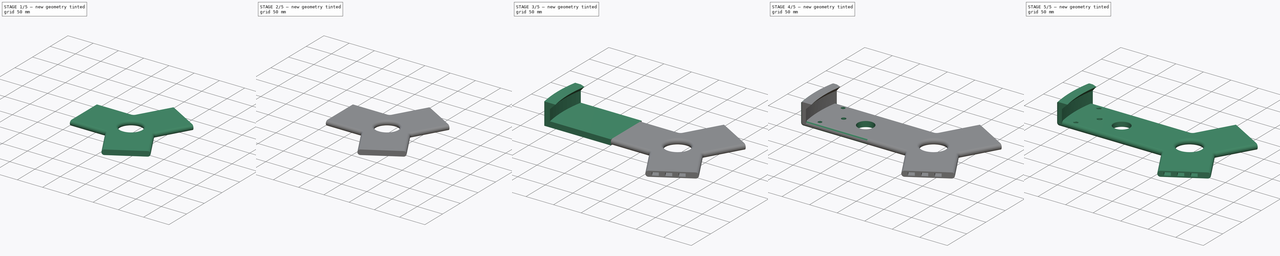
[diagram: build sequence overview — one tinted view per stage of 5, left to right]
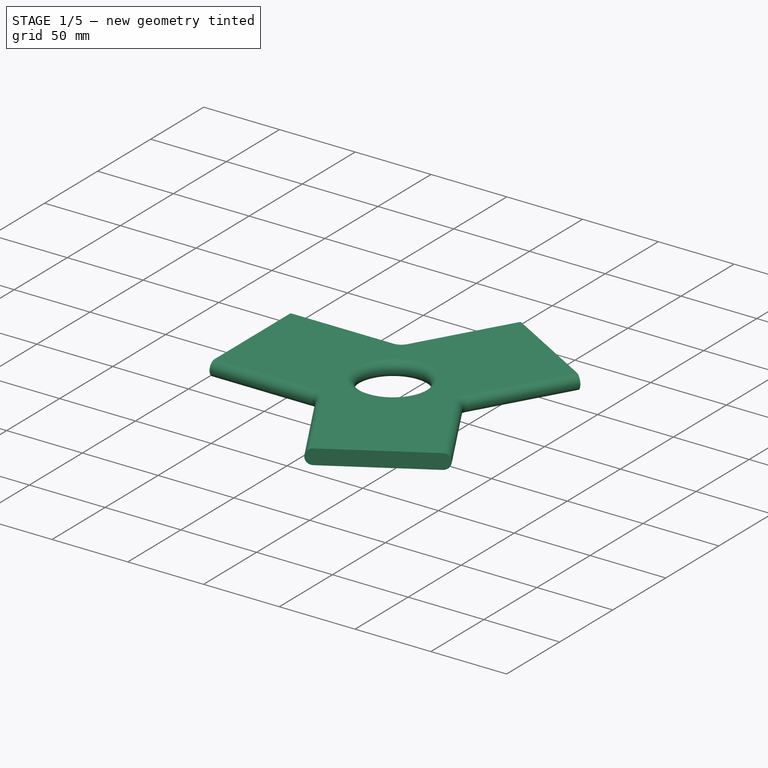
[diagram: stage 1 of 5 — iso view after this stage's code; geometry added in this stage tinted green]
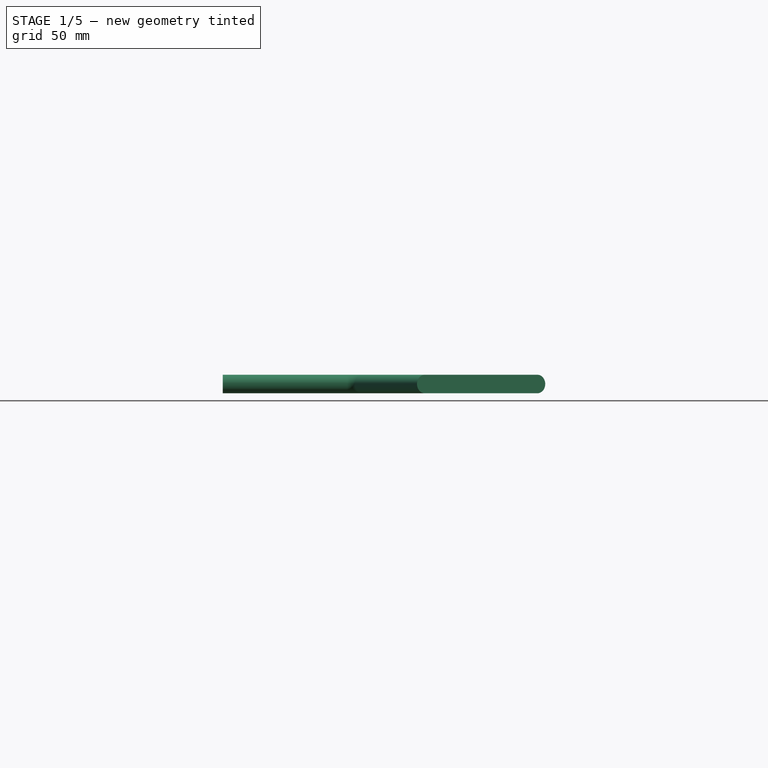
[diagram: stage 1 of 5 — front view after this stage's code; geometry added in this stage tinted green]
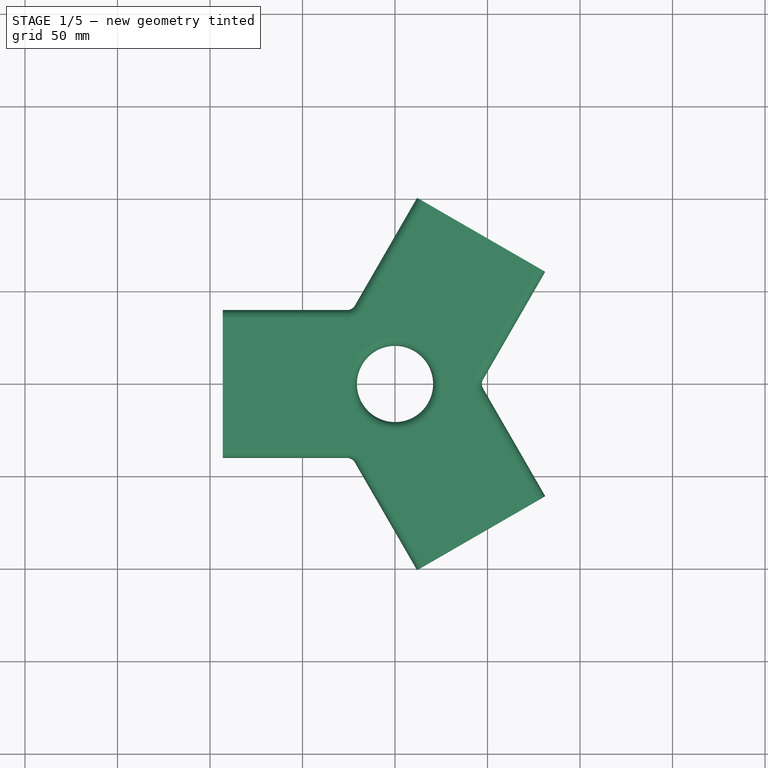
[diagram: stage 1 of 5 — top view after this stage's code; geometry added in this stage tinted green]
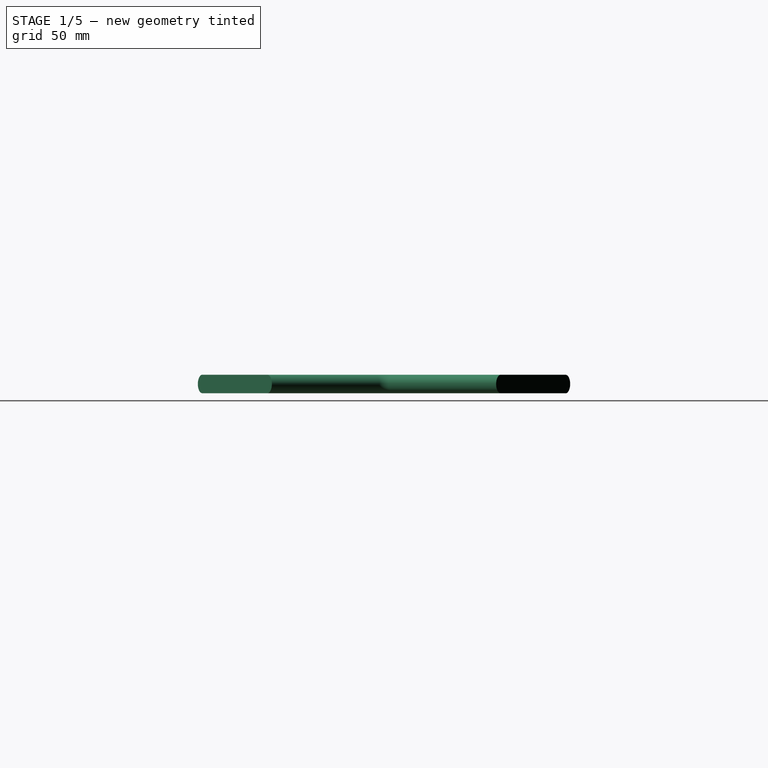
[diagram: stage 1 of 5 — right view after this stage's code; geometry added in this stage tinted green]
FCSTD DOCUMENT  (FreeCAD 1.1R1.1.0)
Label: RainBarrelAdapter01
License: All rights reserved
LicenseURL: http://en.wikipedia.org/wiki/All_rights_reserved
objects: Sketcher::SketchObject×7, PartDesign::Fillet×4, PartDesign::Pad×3, PartDesign::Pocket×3, Part::FeaturePython×3, App::Point×2, Part::Box×2, PartDesign::Body×2, Spreadsheet::Sheet×1, PartDesign::AdditivePipe×1, Part::MultiFuse×1, Part::Cut×1
note: 53 computed .brp shape members not serialized (recipe doc carries the construction recipe); baked Part::Feature solids carry a one-line shape summary decoded from their .brp

FEATURE [Spreadsheet::Sheet] Spreadsheet  label="RainBarrelAdapter"
  cells = A2='Barrel diameter; B2(barrel_min)=380; C2='min; B3(barrel_max)=450; C3='max; A4='Sliding distance; B4(sliding_distance)==barrel_max - barrel_min; A5='Bridge width; B5(bridge_width)=80; A6='Thickness total; B6(thickness)=10; A7='Gripper Extension; B7(gripper_extension)=30; A8='Gripper Depth; B8(gripper_depth)=10; A9='Tolerance; B9(sliding_tolerance)=0.4
FEATURE [App::Point] Origin001
  Role = Origin
FEATURE [Sketcher::SketchObject] Sketch
  ArcFitTolerance = 1e-06
  AttachmentSupport = -> [Origin]
  ExternalTypes = [0]
  FullyConstrained = true
  MakeInternals = false
  MapMode = 5
  _ExternalGeoVersion = 1
  expr: Constraints[12] = <<RainBarrelAdapter>>.bridge_width
  expr: Constraints[14] = 2 * <<RainBarrelAdapter>>.bridge_width / 2 * tan(30)
  expr: Constraints[1] = <<RainBarrelAdapter>>.barrel_max
  expr: Constraints[36] = <<RainBarrelAdapter>>.sliding_distance
  expr: Constraints[37] = <<RainBarrelAdapter>>.sliding_distance
  expr: Constraints[38] = <<RainBarrelAdapter>>.sliding_distance
  sketch-geometry (15):
    g0: Circle [constr] CenterX=0 CenterY=0 CenterZ=0 NormalX=0 NormalY=0 NormalZ=1 AngleXU=0 Radius=225
    g1: LineSegment [constr] StartX=46.188 StartY=7.1e-15 StartZ=0 EndX=-23.094 EndY=40 EndZ=0
    g2: LineSegment [constr] StartX=-23.094 StartY=40 StartZ=0 EndX=-23.094 EndY=-40 EndZ=0
    g3: LineSegment [constr] StartX=-23.094 StartY=-40 StartZ=0 EndX=46.188 EndY=7.1e-15 EndZ=0
    g4: Circle [constr] CenterX=0 CenterY=0 CenterZ=0 NormalX=0 NormalY=0 NormalZ=1 AngleXU=0 Radius=46.188
    g5: Circle [constr] CenterX=0 CenterY=0 CenterZ=0 NormalX=0 NormalY=0 NormalZ=1 AngleXU=0 Radius=23.094
    g6: LineSegment StartX=-23.094 StartY=40 StartZ=0 EndX=11.906 EndY=100.622 EndZ=0
    g7: LineSegment StartX=11.906 StartY=100.622 StartZ=0 EndX=81.188 EndY=60.6218 EndZ=0
    g8: LineSegment StartX=81.188 StartY=60.6218 StartZ=0 EndX=46.188 EndY=7.1e-15 EndZ=0
    g9: LineSegment StartX=46.188 StartY=7.1e-15 StartZ=0 EndX=81.188 EndY=-60.6218 EndZ=0
    g10: LineSegment StartX=81.188 StartY=-60.6218 StartZ=0 EndX=11.906 EndY=-100.622 EndZ=0
    g11: LineSegment StartX=11.906 StartY=-100.622 StartZ=0 EndX=-23.094 EndY=-40 EndZ=0
    g12: LineSegment StartX=-23.094 StartY=-40 StartZ=0 EndX=-93.094 EndY=-40 EndZ=0
    g13: LineSegment StartX=-93.094 StartY=-40 StartZ=0 EndX=-93.094 EndY=40 EndZ=0
    g14: LineSegment StartX=-93.094 StartY=40 StartZ=0 EndX=-23.094 EndY=40 EndZ=0
  constraints (39):
    c: Coincident(g0,g-1)
    c: Diameter(g0) = 450
    c: Coincident(g1,g2)
    c: Coincident(g2,g3)
    c: Coincident(g3,g1)
    c: Equal(g1,g2)
    c: Equal(g1,g3)
    c: PointOnObject(g1,g4)
    c: PointOnObject(g2,g4)
    c: PointOnObject(g3,g4)
    c: Coincident(g4,g0)
    c: PointOnObject(g3,g-1)
    c: DistanceY(g2,g2) = 80
    c: Coincident(g5,g0)
    c: Diameter(g5) = 46.188
    c: Coincident(g1,g6)
    c: Coincident(g6,g7)
    c: Coincident(g7,g8)
    c: Coincident(g8,g1)
    c: Coincident(g8,g9)
    c: Coincident(g9,g10)
    c: Coincident(g10,g11)
    c: Coincident(g11,g2)
    c: Coincident(g11,g12)
    c: Horizontal(g12)
    c: Coincident(g12,g13)
    c: Vertical(g13)
    c: Coincident(g13,g14)
    c: Coincident(g14,g6)
    c: Horizontal(g14)
    c: Perpendicular(g1,g6)
    c: Perpendicular(g8,g1)
    c: Perpendicular(g7,g8)
    c: Perpendicular(g3,g11)
    c: Perpendicular(g9,g3)
    c: Perpendicular(g10,g9)
    c: Distance(g9,g9) = 70
    c: Distance(g8,g8) = 70
    c: DistanceX(g14,g14) = 70
FEATURE [PartDesign::Pad] Pad
  Direction = (0,0,1)
  Length = 10
  Length2 = 10
  Profile = -> Sketch
  ReferenceAxis = -> Sketch [N_Axis]
  SideType = 0
  Suppressed = false
  Type = 0
  Type2 = 0
  expr: Length = <<RainBarrelAdapter>>.thickness
FEATURE [Sketcher::SketchObject] Sketch001
  ArcFitTolerance = 1e-06
  AttachmentSupport = -> [Pad]
  ExternalTypes = [0]
  FullyConstrained = true
  MakeInternals = false
  MapMode = 5
  Placement = pos=(0,0,10) rot=(0,0,1;0rad)
  _ExternalGeoVersion = 1
  expr: Constraints[1] = 2 * <<RainBarrelAdapter>>.bridge_width / 2 * tan(30) - 5
  sketch-geometry (1):
    g0: Circle CenterX=0 CenterY=0 CenterZ=0 NormalX=0 NormalY=0 NormalZ=1 AngleXU=0 Radius=20.594
  constraints (2):
    c: Coincident(g0,g-1)
    c: Diameter(g0) = 41.188
FEATURE [PartDesign::Pocket] Pocket
  BaseFeature = -> Pad
  Direction = (0,0,-1)
  Length = 5
  Length2 = 5
  Profile = -> Sketch001
  ReferenceAxis = -> Sketch001 [N_Axis]
  SideType = 0
  Suppressed = false
  Type = 1
  Type2 = 0
FEATURE [PartDesign::Fillet] Fillet003
  Base = -> Pocket [Edge15,Edge13,Edge20,Edge22,Edge6,Edge3,Edge4,Edge7,Edge19,Edge21,Edge14,Edge12,Edge27,Edge26,Edge1]
  BaseFeature = -> Pocket
  Radius = 4.9
  SupportTransform = false
  Suppressed = false
  UseAllEdges = false
FEATURE [PartDesign::Fillet] Fillet004
  Base = -> Fillet003 [Edge29,Edge40]
  BaseFeature = -> Fillet003
  Radius = 4.9
  SupportTransform = false
  Suppressed = false
  UseAllEdges = false
  expr: Radius = <<RainBarrelAdapter>>.thickness / 2 - 0.1
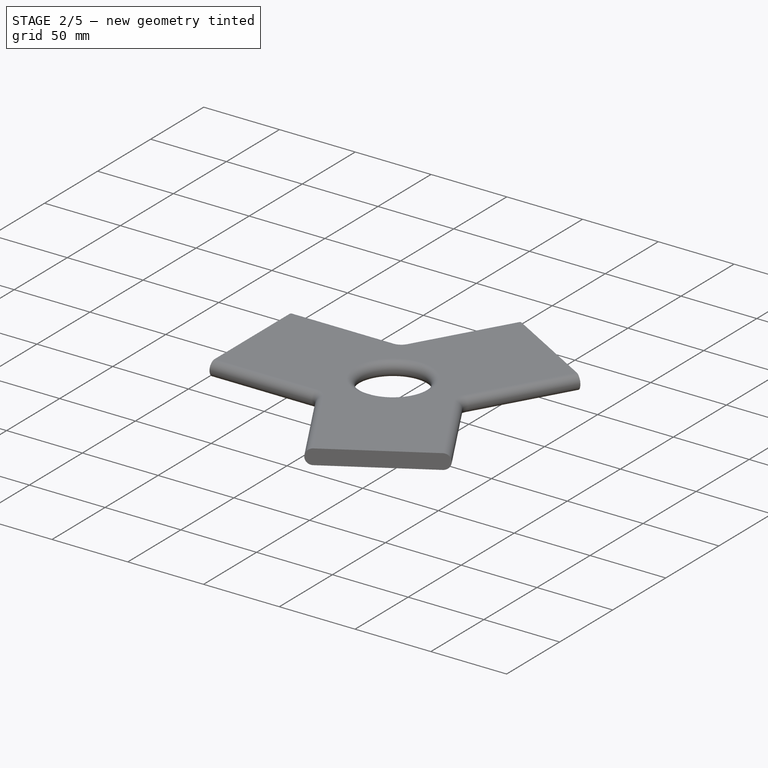
[diagram: stage 2 of 5 — iso view after this stage's code; geometry added in this stage tinted green]
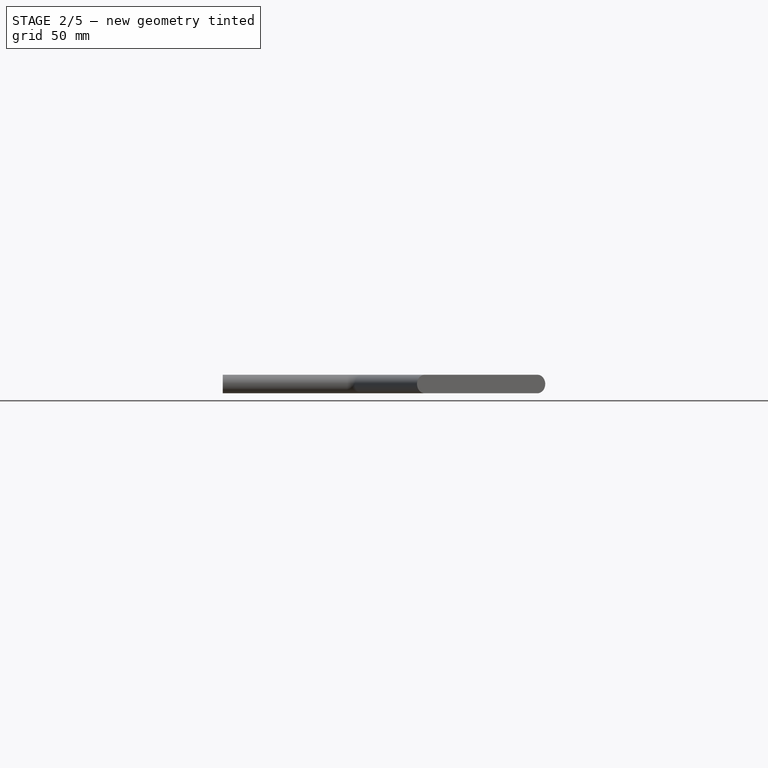
[diagram: stage 2 of 5 — front view after this stage's code; geometry added in this stage tinted green]
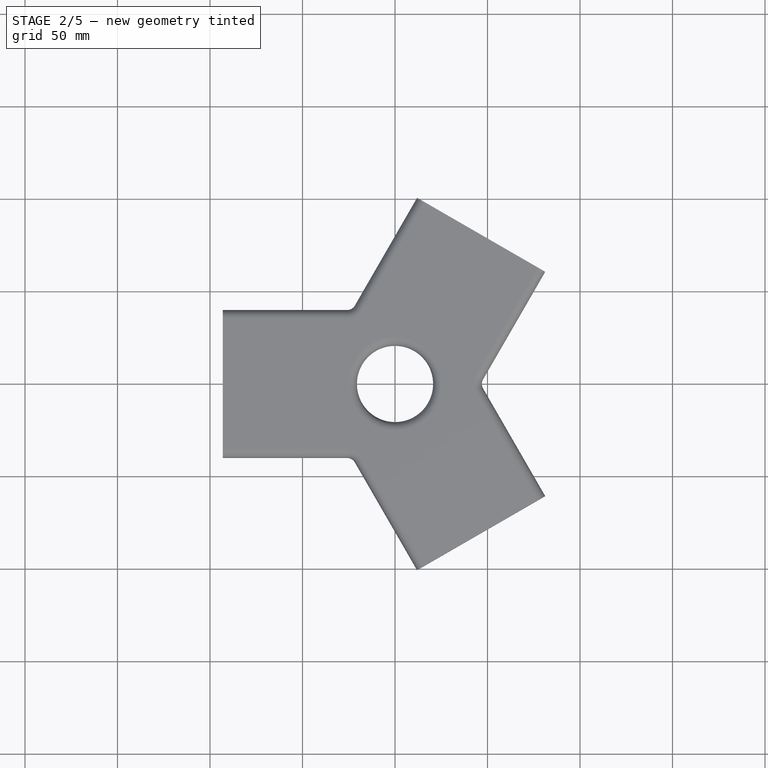
[diagram: stage 2 of 5 — top view after this stage's code; geometry added in this stage tinted green]
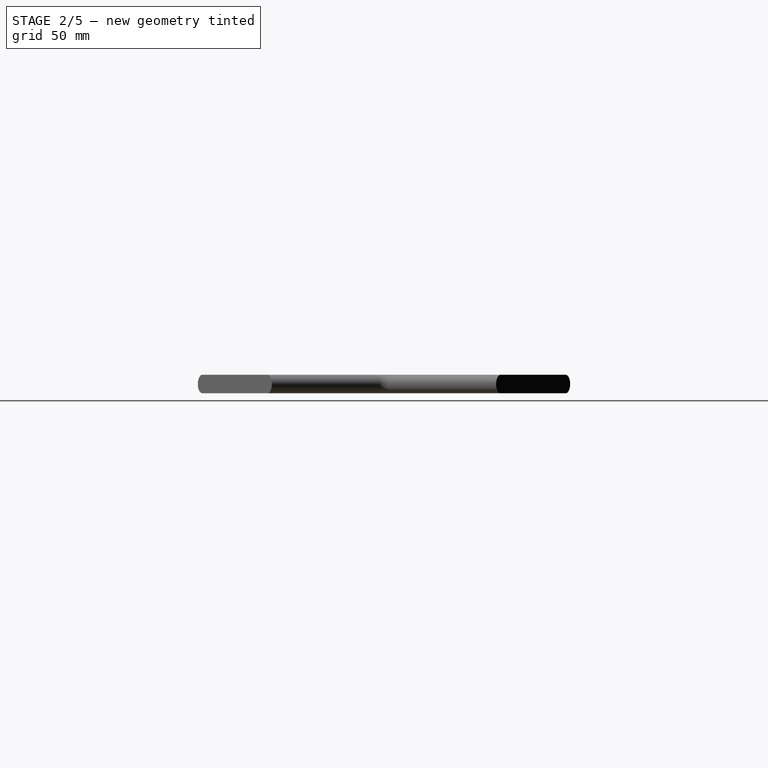
[diagram: stage 2 of 5 — right view after this stage's code; geometry added in this stage tinted green]
FEATURE [Part::Box] Box001  label="Cube001"
  AttacherType = Attacher::AttachEngine3D
  Height = 5.4
  Length = 70
  Placement = pos=(-93.094,19.8,2.3) rot=(0,0,1;0rad)
  Width = 10.4
  expr: .Placement.Base.x = -70 - <<RainBarrelAdapter>>.bridge_width / 2 * tan(30)
  expr: .Placement.Base.y = <<RainBarrelAdapter>>.bridge_width / 2 - <<RainBarrelAdapter>>.thickness * 2 - <<RainBarrelAdapter>>.sliding_tolerance / 2
  expr: .Placement.Base.z = <<RainBarrelAdapter>>.thickness / 4 - <<RainBarrelAdapter>>.sliding_tolerance / 2
  expr: Height = <<RainBarrelAdapter>>.thickness / 2 + <<RainBarrelAdapter>>.sliding_tolerance
  expr: Length = <<RainBarrelAdapter>>.sliding_distance
  expr: Width = <<RainBarrelAdapter>>.thickness + <<RainBarrelAdapter>>.sliding_tolerance
FEATURE [Part::FeaturePython] Array001  # Draft array (typed FeaturePython)
  AlwaysSyncPlacement = false
  Angle = 360
  ArrayType = 0
  Axis = (0,0,1)
  Base = -> Box001
  Center = (0,0,0)
  Count = 3
  ExpandArray = false
  Fuse = false
  IntervalAxis = (0,0,0)
  IntervalX = (100,0,0)
  IntervalY = (0,-20,0)
  IntervalZ = (0,0,5)
  NumberCircles = 3
  NumberPolar = 5
  NumberX = 1
  NumberY = 3
  NumberZ = 1
  PlacementList = 3 placements: arithmetic series from (-93.094,19.8,2.3) step (0,-20,0) to (-93.094,-20.2,2.3)
  RadialDistance = 50
  ScaleList = (3) [(1,1,1),(1,1,1),(1,1,1)]
  Symmetry = 1
  TangentialDistance = 25
  expr: .IntervalY.y = -<<RainBarrelAdapter>>.thickness * 2
  expr: NumberY = floor(<<RainBarrelAdapter>>.bridge_width / (<<RainBarrelAdapter>>.thickness * 2) - 0.1)
FEATURE [Part::FeaturePython] Array002  # Draft array (typed FeaturePython)
  AlwaysSyncPlacement = false
  Angle = 360
  ArrayType = 1
  Axis = (0,0,1)
  Base = -> Array001
  Center = (0,0,0)
  Count = 3
  ExpandArray = false
  Fuse = false
  IntervalAxis = (0,0,0)
  IntervalX = (50,0,0)
  IntervalY = (0,50,0)
  IntervalZ = (0,0,50)
  NumberCircles = 3
  NumberPolar = 3
  NumberX = 2
  NumberY = 2
  NumberZ = 1
  PlacementList = 3 placements: [(0,0,0),(0,0,0),(0,0,0)]
  RadialDistance = 50
  ScaleList = (3) [(1,1,1),(1,1,1),(1,1,1)]
  Symmetry = 1
  TangentialDistance = 25
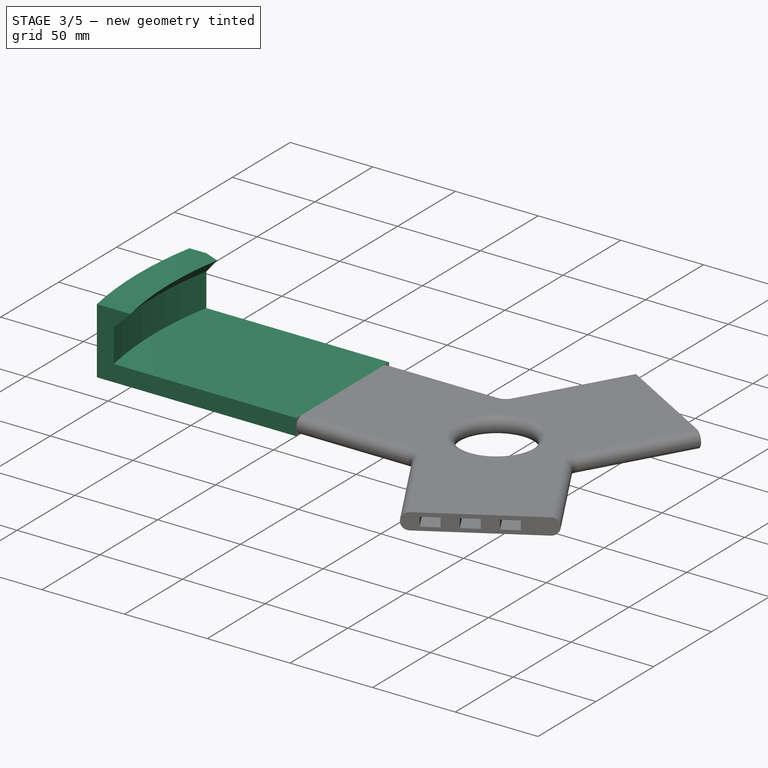
[diagram: stage 3 of 5 — iso view after this stage's code; geometry added in this stage tinted green]
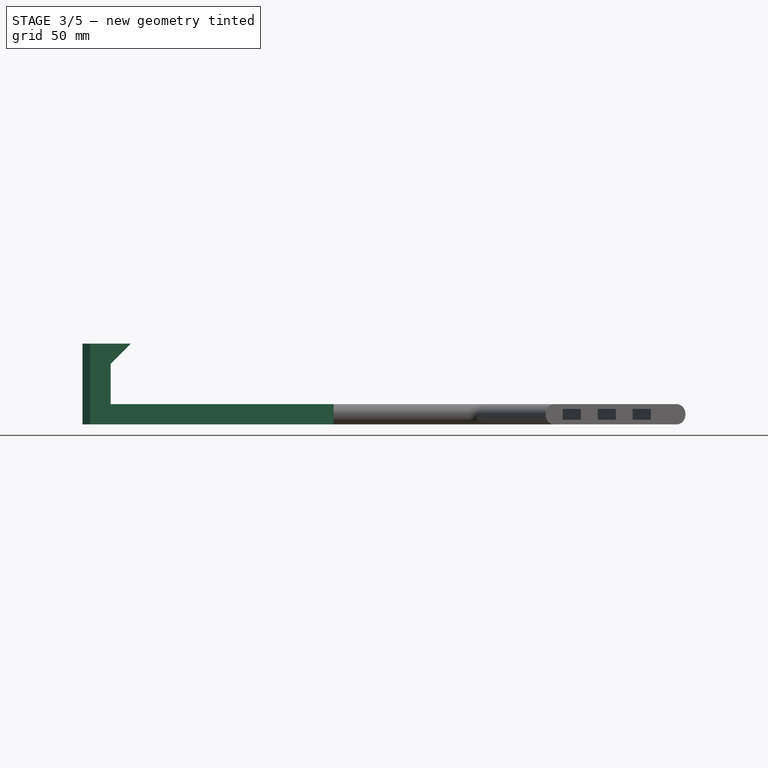
[diagram: stage 3 of 5 — front view after this stage's code; geometry added in this stage tinted green]
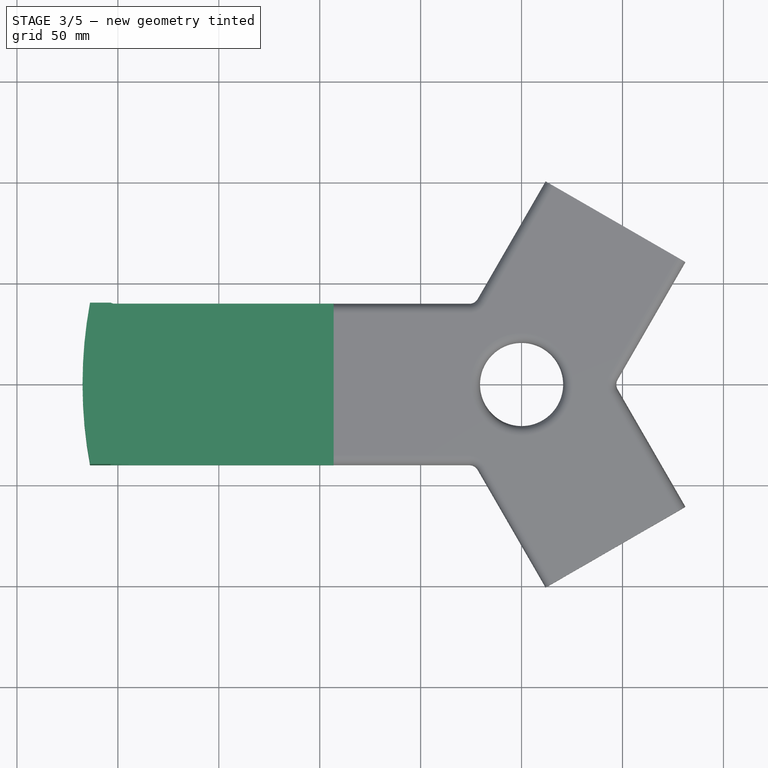
[diagram: stage 3 of 5 — top view after this stage's code; geometry added in this stage tinted green]
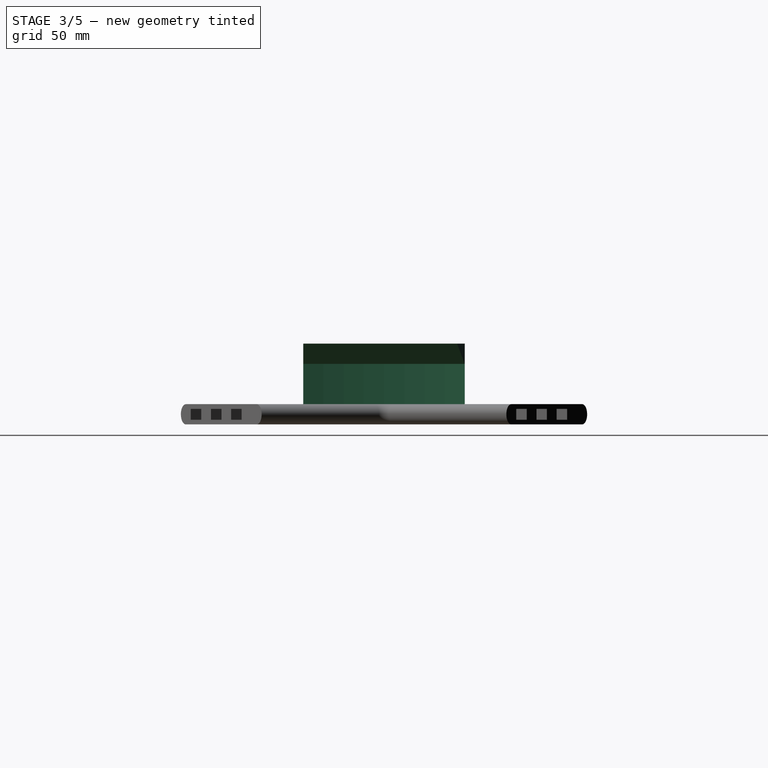
[diagram: stage 3 of 5 — right view after this stage's code; geometry added in this stage tinted green]
FEATURE [App::Point] Origin003
  Role = Origin
FEATURE [Sketcher::SketchObject] Sketch002
  ArcFitTolerance = 1e-06
  AttachmentSupport = -> [Origin002]
  ExternalTypes = [0]
  FullyConstrained = true
  MakeInternals = false
  MapMode = 5
  _ExternalGeoVersion = 1
  expr: Constraints[10] = <<RainBarrelAdapter>>.bridge_width
  expr: Constraints[11] = <<RainBarrelAdapter>>.bridge_width / 2
  expr: Constraints[12] = (<<RainBarrelAdapter>>.barrel_max + <<RainBarrelAdapter>>.barrel_min) / 4 + <<RainBarrelAdapter>>.thickness
  expr: Constraints[13] = <<RainBarrelAdapter>>.sliding_distance + <<RainBarrelAdapter>>.bridge_width / 2 * tan(30)
  expr: Constraints[1] = (<<RainBarrelAdapter>>.barrel_max + <<RainBarrelAdapter>>.barrel_min) / 2
  sketch-geometry (5):
    g0: Circle [constr] CenterX=0 CenterY=0 CenterZ=0 NormalX=0 NormalY=0 NormalZ=1 AngleXU=0 Radius=207.5
    g1: ArcOfCircle CenterX=0 CenterY=0 CenterZ=0 NormalX=0 NormalY=0 NormalZ=1 AngleXU=0 Radius=217.5 StartAngle=2.95663 EndAngle=3.32655
    g2: LineSegment StartX=-213.79 StartY=40 StartZ=0 EndX=-93.094 EndY=40 EndZ=0
    g3: LineSegment StartX=-93.094 StartY=40 StartZ=0 EndX=-93.094 EndY=-40 EndZ=0
    g4: LineSegment StartX=-93.094 StartY=-40 StartZ=0 EndX=-213.79 EndY=-40 EndZ=0
  constraints (14):
    c: Coincident(g0,g-1)
    c: Diameter(g0) = 415
    c: Coincident(g1,g0)
    c: Coincident(g1,g2)
    c: Horizontal(g2)
    c: Coincident(g2,g3)
    c: Vertical(g3)
    c: Coincident(g3,g4)
    c: Coincident(g4,g1)
    c: Horizontal(g4)
    c: DistanceY(g3,g3) = 80
    c: DistanceY(g0,g2) = 40
    c: Radius(g1) = 217.5
    c: DistanceX(g2,g0) = 93.094
FEATURE [PartDesign::Pad] Pad001
  Direction = (0,0,1)
  Length = 10
  Length2 = 10
  Profile = -> Sketch002
  ReferenceAxis = -> Sketch002 [N_Axis]
  SideType = 0
  Suppressed = false
  Type = 0
  Type2 = 0
  expr: Length = <<RainBarrelAdapter>>.thickness
FEATURE [Sketcher::SketchObject] Sketch003
  ArcFitTolerance = 1e-06
  AttachmentSupport = -> [Pad001]
  ExternalGeometry = -> [Pad001]
  ExternalTypes = [0,0,0]
  FullyConstrained = true
  MakeInternals = false
  MapMode = 5
  Placement = pos=(0,0,10) rot=(0,0,1;0rad)
  _ExternalGeoVersion = 1
  expr: Constraints[3] = (<<RainBarrelAdapter>>.barrel_max + <<RainBarrelAdapter>>.barrel_min) / 4
  sketch-geometry (3):
    g0: ArcOfCircle CenterX=0 CenterY=0 CenterZ=0 NormalX=0 NormalY=0 NormalZ=1 AngleXU=0 Radius=207.5 StartAngle=2.94761 EndAngle=3.33558
    g1: LineSegment StartX=-203.608 StartY=40 StartZ=0 EndX=-213.79 EndY=40 EndZ=0
    g2: LineSegment StartX=-203.608 StartY=-40 StartZ=0 EndX=-213.79 EndY=-40 EndZ=0
  constraints (8):
    c: Coincident(g0,g-3)
    c: PointOnObject(g0,g-4)
    c: PointOnObject(g0,g-5)
    c: Radius(g0) = 207.5
    c: Coincident(g1,g0)
    c: Coincident(g1,g-4)
    c: Coincident(g2,g0)
    c: Coincident(g2,g-5)
FEATURE [PartDesign::Pad] Pad002
  BaseFeature = -> Pad001
  Direction = (0,0,1)
  Length = 30
  Length2 = 10
  Profile = -> Sketch003
  ReferenceAxis = -> Sketch003 [N_Axis]
  SideType = 0
  Suppressed = false
  Type = 0
  Type2 = 0
  expr: Length = <<RainBarrelAdapter>>.gripper_extension
FEATURE [Sketcher::SketchObject] Sketch004
  ArcFitTolerance = 1e-06
  AttachmentSupport = -> [Pad002]
  ExternalGeometry = -> [Pad002]
  ExternalTypes = [0]
  FullyConstrained = true
  MakeInternals = false
  MapMode = 5
  Placement = pos=(8.37e-14,-40,0) rot=(1,0,0;1.5708rad)
  _ExternalGeoVersion = 1
  expr: Constraints[6] = <<RainBarrelAdapter>>.gripper_depth
  expr: Constraints[7] = <<RainBarrelAdapter>>.gripper_depth
  sketch-geometry (3):
    g0: LineSegment StartX=-203.608 StartY=40 StartZ=0 EndX=-193.608 EndY=40 EndZ=0
    g1: LineSegment StartX=-193.608 StartY=40 StartZ=0 EndX=-203.608 EndY=30 EndZ=0
    g2: LineSegment StartX=-203.608 StartY=30 StartZ=0 EndX=-203.608 EndY=40 EndZ=0
  constraints (8):
    c: Coincident(g-3,g0)
    c: Horizontal(g0)
    c: Coincident(g0,g1)
    c: PointOnObject(g1,g-3)
    c: Coincident(g1,g2)
    c: Coincident(g2,g0)
    c: DistanceY(g2,g2) = 10
    c: DistanceX(g0,g0) = 10
FEATURE [PartDesign::AdditivePipe] AdditivePipe
  AuxiliaryCurvilinear = true
  AuxiliarySpineTangent = false
  BaseFeature = -> Pad002
  Binormal = (0,0,0)
  Mode = 0
  Profile = -> Sketch004
  Spine = -> Pad002 [Edge23]
  SpineTangent = false
  Suppressed = false
  Transformation = 0
  Transition = 0
FEATURE [PartDesign::Body] Body
  AllowCompound = false
  Group = -> [Sketch,Pad,Sketch001,Pocket,Fillet003,Fillet004]
  Origin = -> Origin
  Tip = -> Fillet004
FEATURE [Part::Cut] Cut  label="InnerJoinerBase"
  Base = -> Body
  Tool = -> Array002
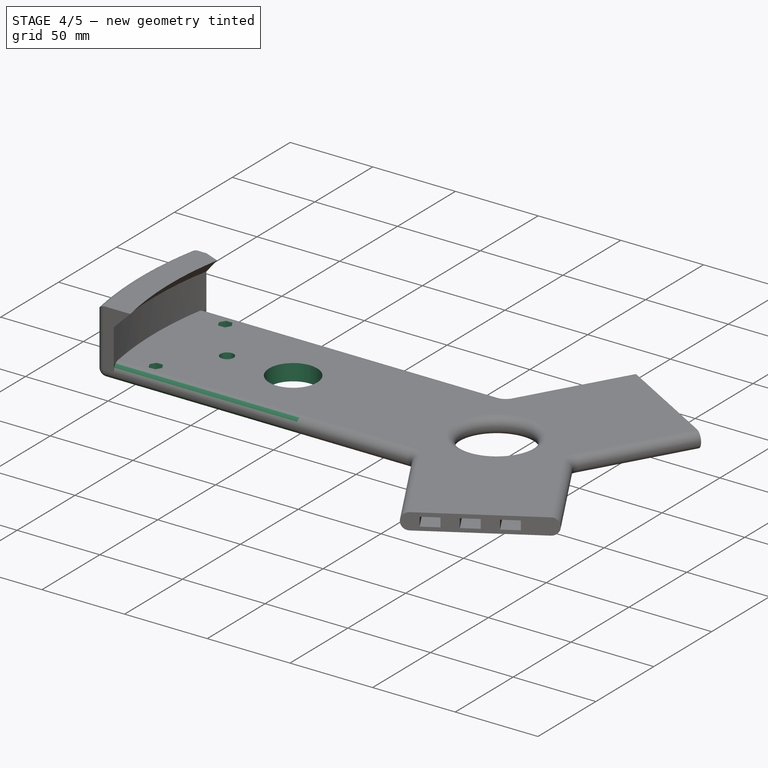
[diagram: stage 4 of 5 — iso view after this stage's code; geometry added in this stage tinted green]
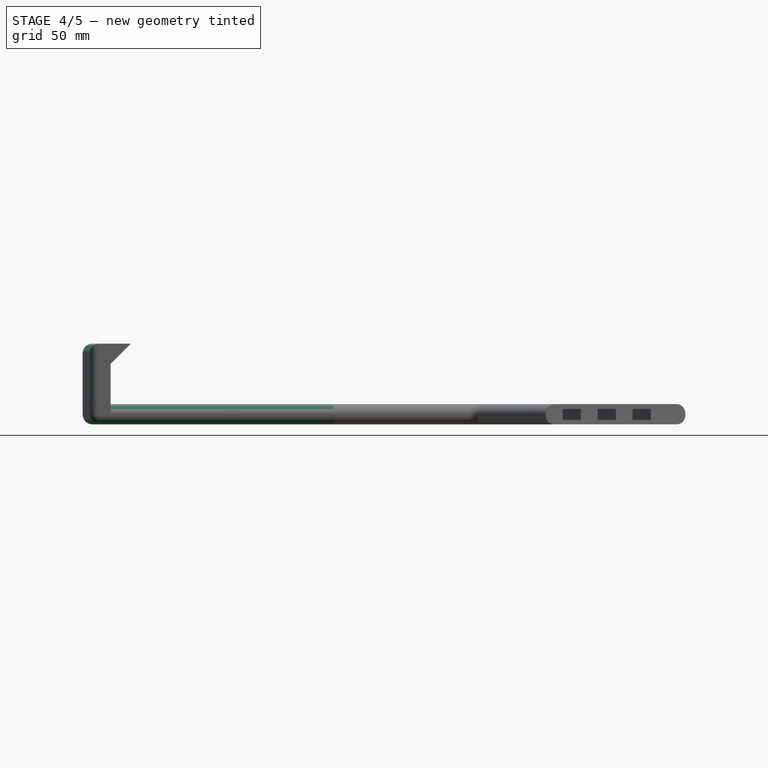
[diagram: stage 4 of 5 — front view after this stage's code; geometry added in this stage tinted green]
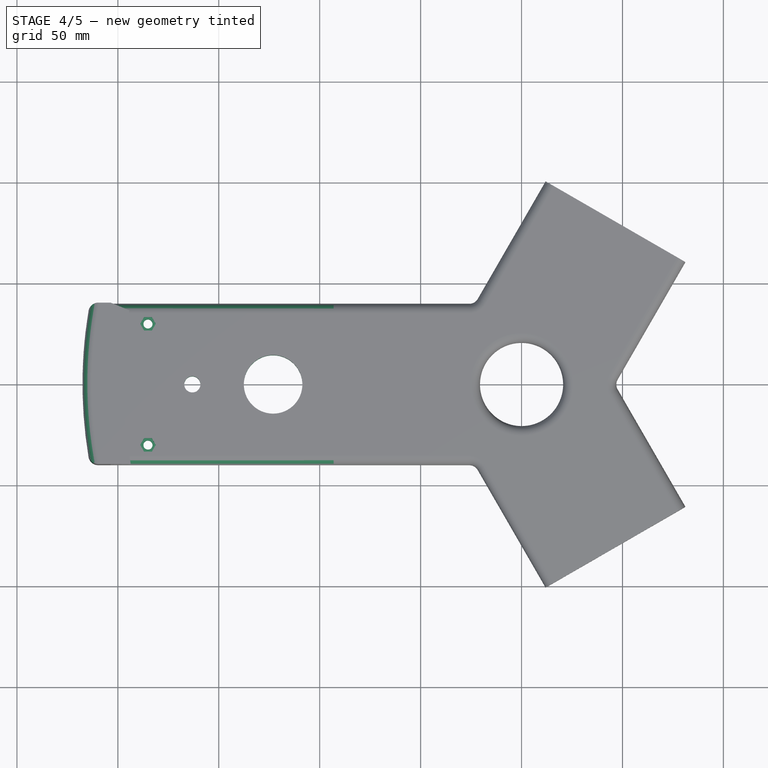
[diagram: stage 4 of 5 — top view after this stage's code; geometry added in this stage tinted green]
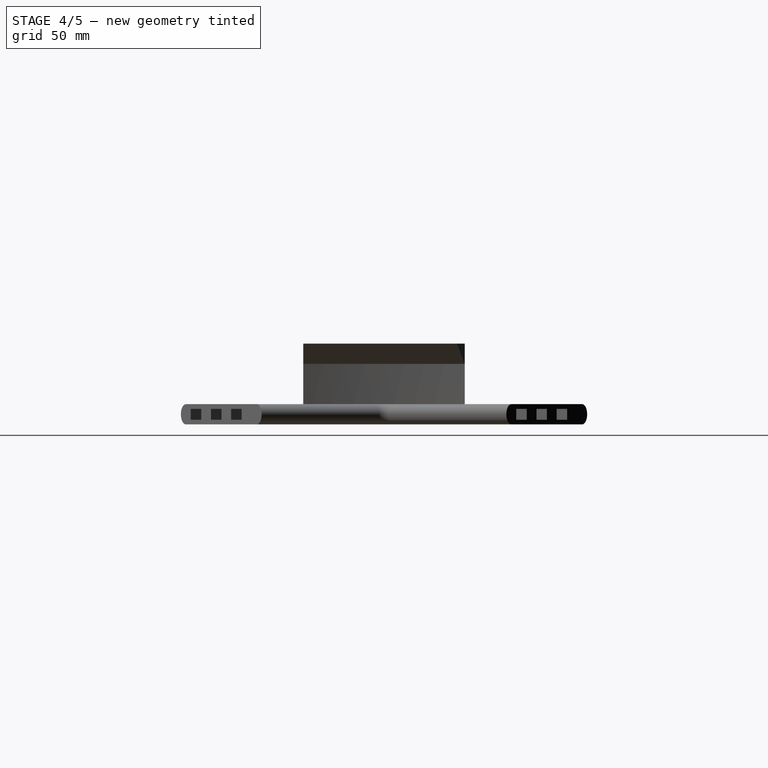
[diagram: stage 4 of 5 — right view after this stage's code; geometry added in this stage tinted green]
FEATURE [Sketcher::SketchObject] Sketch005
  ArcFitTolerance = 1e-06
  AttachmentSupport = -> [AdditivePipe]
  ExternalGeometry = -> [AdditivePipe]
  ExternalTypes = [0,0,0]
  FullyConstrained = true
  MakeInternals = false
  MapMode = 5
  Placement = pos=(0,0,0) rot=(1,0,0;3.14159rad)
  _ExternalGeoVersion = 1
  expr: Constraints[4] = (<<RainBarrelAdapter>>.barrel_min + <<RainBarrelAdapter>>.barrel_max) / 4 - <<RainBarrelAdapter>>.thickness - <<RainBarrelAdapter>>.gripper_depth
  expr: Constraints[5] = (<<RainBarrelAdapter>>.barrel_min + <<RainBarrelAdapter>>.barrel_max) / 4 - <<RainBarrelAdapter>>.thickness - <<RainBarrelAdapter>>.gripper_depth
  expr: Constraints[7] = <<RainBarrelAdapter>>.bridge_width / 2 - 10
  expr: Constraints[8] = -(<<RainBarrelAdapter>>.bridge_width / 2 - 10)
  sketch-geometry (4):
    g0: Circle CenterX=-123.094 CenterY=0 CenterZ=0 NormalX=0 NormalY=0 NormalZ=1 AngleXU=0 Radius=14.5
    g1: Circle CenterX=-185.084 CenterY=30 CenterZ=0 NormalX=0 NormalY=0 NormalZ=1 AngleXU=0 Radius=2.25
    g2: Circle CenterX=-185.084 CenterY=-30 CenterZ=0 NormalX=0 NormalY=0 NormalZ=1 AngleXU=0 Radius=2.25
    g3: Circle CenterX=-163.094 CenterY=0 CenterZ=0 NormalX=0 NormalY=0 NormalZ=1 AngleXU=0 Radius=4
  constraints (12):
    c: PointOnObject(g0,g-1)
    c: Diameter(g0) = 29
    c: Diameter(g1) = 4.5
    c: Diameter(g2) = 4.5
    c: Distance(g-1,g2) = 187.5
    c: Distance(g-1,g1) = 187.5
    c: Distance(g0,g-3) = 30
    c: DistanceY(g1) = 30
    c: DistanceY(g2) = -30
    c: PointOnObject(g3,g-1)
    c: Diameter(g3) = 8
    c: DistanceX(g3,g0) = 40
FEATURE [PartDesign::Pocket] Pocket001
  BaseFeature = -> AdditivePipe
  Direction = (0,0,1)
  Length = 5
  Length2 = 5
  Profile = -> Sketch005
  ReferenceAxis = -> Sketch005 [N_Axis]
  SideType = 0
  Suppressed = false
  Type = 1
  Type2 = 0
FEATURE [Sketcher::SketchObject] Sketch006
  ArcFitTolerance = 1e-06
  AttachmentSupport = -> [Pocket001]
  ExternalGeometry = -> [Pocket001]
  ExternalTypes = [0,0]
  FullyConstrained = true
  MakeInternals = false
  MapMode = 5
  Placement = pos=(0,0,10) rot=(0,0,1;0rad)
  _ExternalGeoVersion = 1
  expr: Constraints[18] = 7.7
  sketch-geometry (14):
    g0: LineSegment StartX=-181.234 StartY=30 StartZ=0 EndX=-183.159 EndY=33.3342 EndZ=0
    g1: LineSegment StartX=-183.159 StartY=33.3342 StartZ=0 EndX=-187.009 EndY=33.3342 EndZ=0
    g2: LineSegment StartX=-187.009 StartY=33.3342 StartZ=0 EndX=-188.934 EndY=30 EndZ=0
    g3: LineSegment StartX=-188.934 StartY=30 StartZ=0 EndX=-187.009 EndY=26.6658 EndZ=0
    g4: LineSegment StartX=-187.009 StartY=26.6658 StartZ=0 EndX=-183.159 EndY=26.6658 EndZ=0
    g5: LineSegment StartX=-183.159 StartY=26.6658 StartZ=0 EndX=-181.234 EndY=30 EndZ=0
    g6: Circle [constr] CenterX=-185.084 CenterY=30 CenterZ=0 NormalX=0 NormalY=0 NormalZ=1 AngleXU=0 Radius=3.85
    g7: LineSegment StartX=-181.234 StartY=-30 StartZ=0 EndX=-183.159 EndY=-26.6658 EndZ=0
    g8: LineSegment StartX=-183.159 StartY=-26.6658 StartZ=0 EndX=-187.009 EndY=-26.6658 EndZ=0
    g9: LineSegment StartX=-187.009 StartY=-26.6658 StartZ=0 EndX=-188.934 EndY=-30 EndZ=0
    g10: LineSegment StartX=-188.934 StartY=-30 StartZ=0 EndX=-187.009 EndY=-33.3342 EndZ=0
    g11: LineSegment StartX=-187.009 StartY=-33.3342 StartZ=0 EndX=-183.159 EndY=-33.3342 EndZ=0
    g12: LineSegment StartX=-183.159 StartY=-33.3342 StartZ=0 EndX=-181.234 EndY=-30 EndZ=0
    g13: Circle [constr] CenterX=-185.084 CenterY=-30 CenterZ=0 NormalX=0 NormalY=0 NormalZ=1 AngleXU=0 Radius=3.85
  constraints (32):
    c: Coincident(g0,g1)
    c: Coincident(g1,g2)
    c: Coincident(g2,g3)
    c: Coincident(g3,g4)
    c: Coincident(g4,g5)
    c: Coincident(g5,g0)
    c: Equal(g0, g1-g5) x5
    c: PointOnObject(g0,g6)
    c: PointOnObject(g1,g6)
    c: PointOnObject(g2,g6)
    c: PointOnObject(g3,g6)
    c: PointOnObject(g4,g6)
    c: PointOnObject(g5,g6)
    c: Coincident(g6,g-3)
    c: Diameter(g6) = 7.7
    c: Horizontal(g4)
    c: Coincident(g7,g8)
    c: Coincident(g8,g9)
    c: Coincident(g9,g10)
    c: Coincident(g10,g11)
    c: Coincident(g11,g12)
    c: Coincident(g12,g7)
    c: Equal(g7, g8-g12) x5
    c: PointOnObject(g7,g13)
    c: PointOnObject(g8,g13)
    c: PointOnObject(g9,g13)
    c: PointOnObject(g10,g13)
    c: PointOnObject(g11,g13)
    c: PointOnObject(g12,g13)
    c: Coincident(g13,g-4)
    c: Horizontal(g11)
    c: Diameter(g13) = 7.7
FEATURE [PartDesign::Pocket] Pocket002
  BaseFeature = -> Pocket001
  Direction = (0,0,-1)
  Length = 3.5
  Length2 = 5
  Profile = -> Sketch006
  ReferenceAxis = -> Sketch006 [N_Axis]
  SideType = 0
  Suppressed = false
  Type = 0
  Type2 = 0
FEATURE [PartDesign::Fillet] Fillet
  Base = -> Pocket002 [Edge3,Edge10,Edge6,Edge2,Edge1,Edge20,Edge11,Edge8]
  BaseFeature = -> Pocket002
  Radius = 4.9
  SupportTransform = false
  Suppressed = false
  UseAllEdges = false
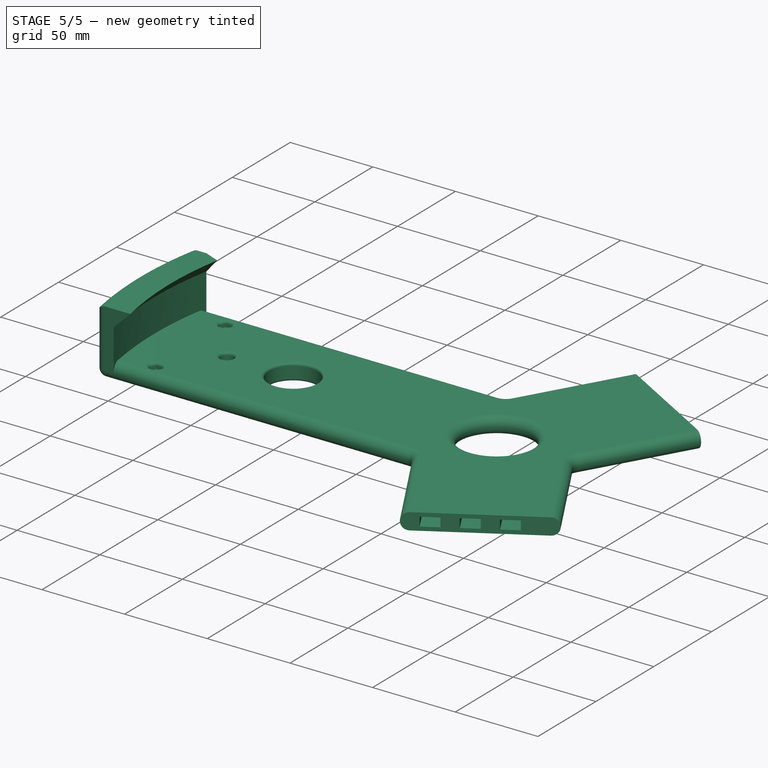
[diagram: stage 5 of 5 — iso view after this stage's code; geometry added in this stage tinted green]
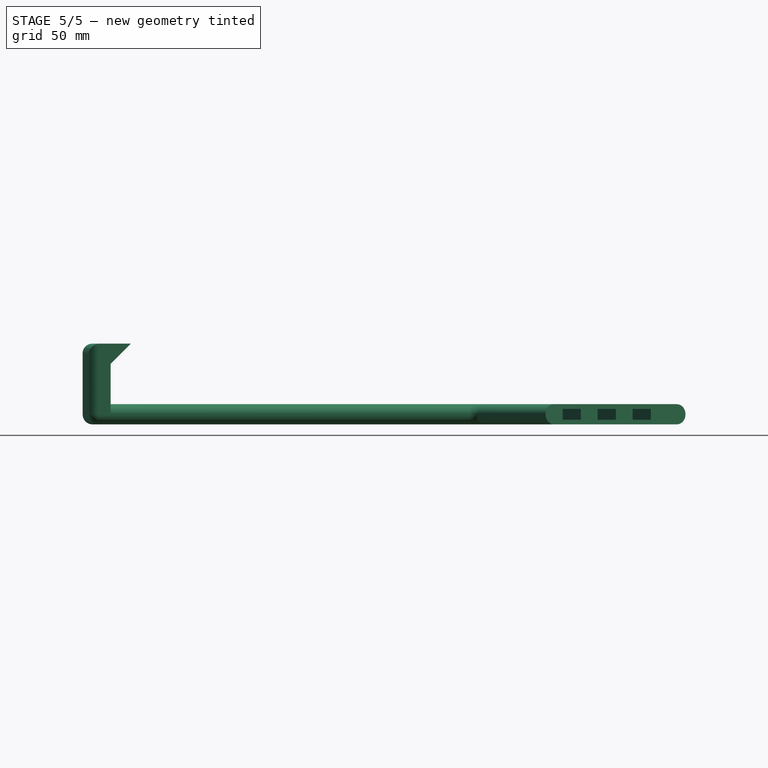
[diagram: stage 5 of 5 — front view after this stage's code; geometry added in this stage tinted green]
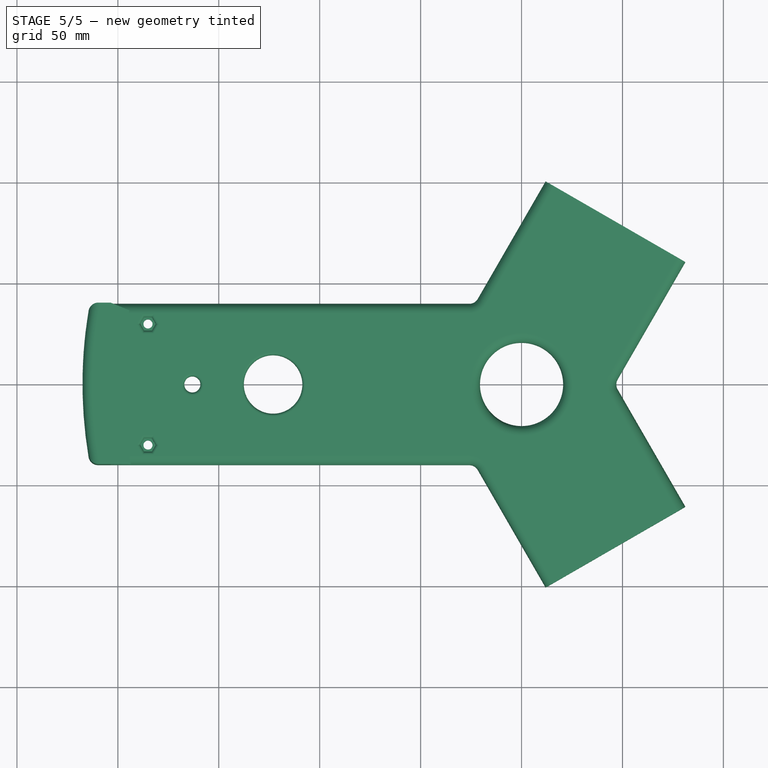
[diagram: stage 5 of 5 — top view after this stage's code; geometry added in this stage tinted green]
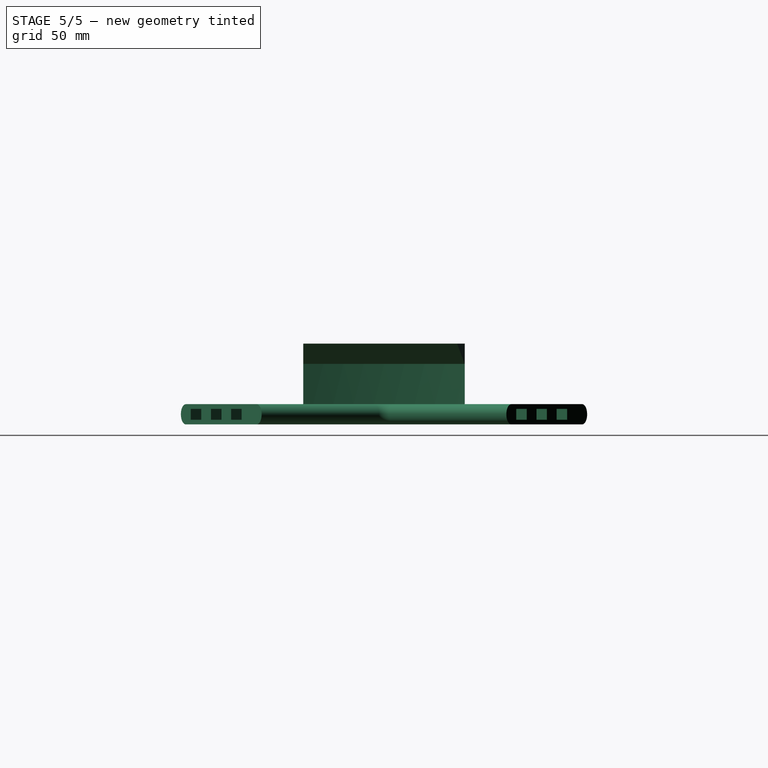
[diagram: stage 5 of 5 — right view after this stage's code; geometry added in this stage tinted green]
FEATURE [Part::Box] Box  label="Cube"
  AttacherType = Attacher::AttachEngine3D
  Height = 5
  Length = 70
  Placement = pos=(-93.094,20,2.5) rot=(0,0,1;0rad)
  Width = 10
  expr: .Placement.Base.x = -70 - <<RainBarrelAdapter>>.bridge_width / 2 * tan(30)
  expr: .Placement.Base.y = <<RainBarrelAdapter>>.bridge_width / 2 - <<RainBarrelAdapter>>.thickness * 2
  expr: .Placement.Base.z = <<RainBarrelAdapter>>.thickness / 4
  expr: Height = <<RainBarrelAdapter>>.thickness / 2
  expr: Length = <<RainBarrelAdapter>>.sliding_distance
  expr: Width = <<RainBarrelAdapter>>.thickness
FEATURE [Part::FeaturePython] Array  # Draft array (typed FeaturePython)
  AlwaysSyncPlacement = false
  Angle = 360
  ArrayType = 0
  Axis = (0,0,1)
  Base = -> Box
  Center = (0,0,0)
  Count = 3
  ExpandArray = false
  Fuse = false
  IntervalAxis = (0,0,0)
  IntervalX = (50,0,0)
  IntervalY = (0,-20,0)
  IntervalZ = (0,0,5)
  NumberCircles = 3
  NumberPolar = 5
  NumberX = 1
  NumberY = 3
  NumberZ = 1
  PlacementList = 3 placements: arithmetic series from (-93.094,20,2.5) step (0,-20,0) to (-93.094,-20,2.5)
  RadialDistance = 50
  ScaleList = (3) [(1,1,1),(1,1,1),(1,1,1)]
  Symmetry = 1
  TangentialDistance = 25
  expr: .IntervalY.y = -<<RainBarrelAdapter>>.thickness * 2
  expr: NumberY = floor(<<RainBarrelAdapter>>.bridge_width / (<<RainBarrelAdapter>>.thickness * 2) - 0.1)
FEATURE [PartDesign::Fillet] Fillet001
  Base = -> Fillet [Edge44,Edge70,Edge42,Edge43,Edge41,Edge66,Edge77,Edge78,Edge79,Edge80,Edge81,Edge76,Edge84,Edge85,Edge86,Edge87,Edge82,Edge83]
  BaseFeature = -> Fillet
  Radius = 1.5
  SupportTransform = false
  Suppressed = false
  UseAllEdges = false
FEATURE [PartDesign::Body] Body001
  AllowCompound = false
  Group = -> [Sketch002,Pad001,Sketch003,Pad002,Sketch004,AdditivePipe,Sketch005,Pocket001,Sketch006,Pocket002,Fillet,Fillet001]
  Origin = -> Origin002
  Tip = -> Fillet001
FEATURE [Part::MultiFuse] Fusion  label="OuterJoiner_Base"
  Shapes = -> [Body001,Array]
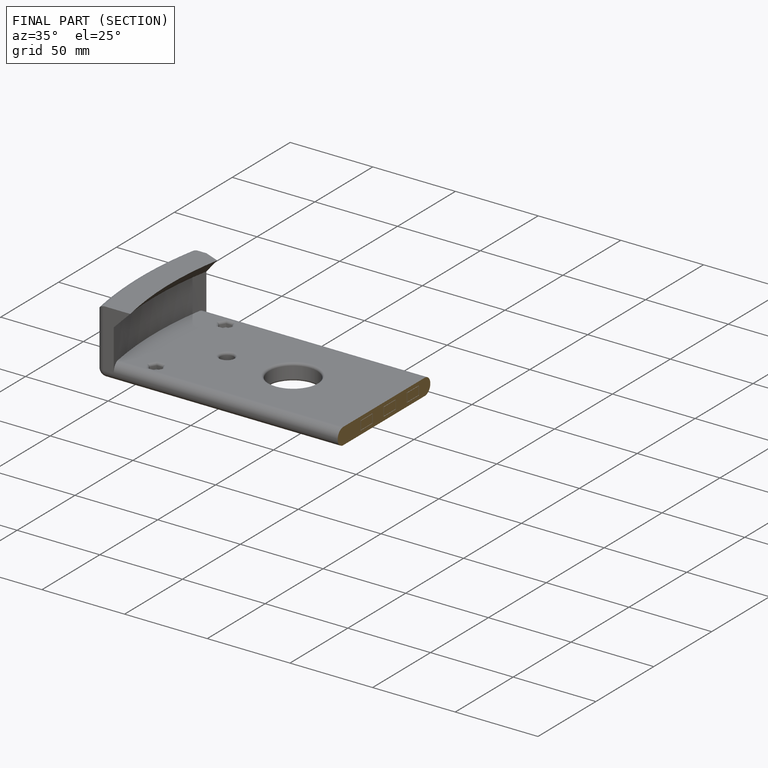
[diagram: finished part — half-section view (interior)]
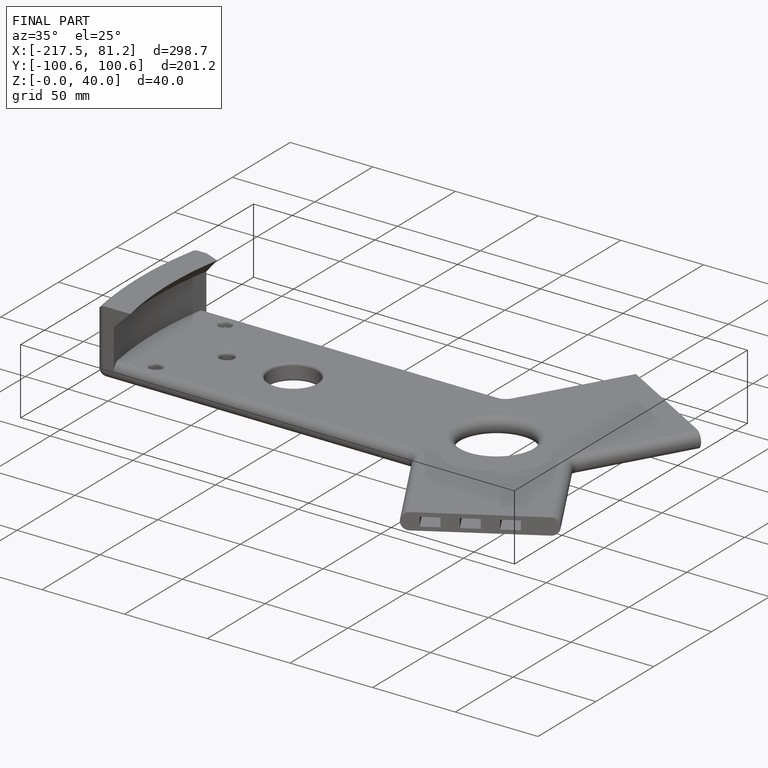
[diagram: finished part — iso view with bounding-box wireframe]
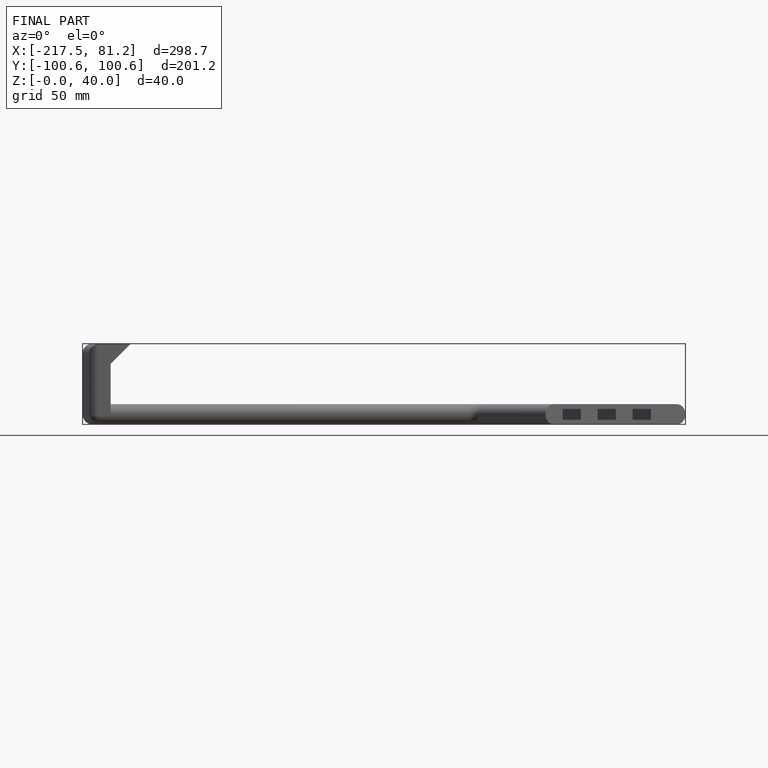
[diagram: finished part — front view with bounding-box wireframe]
